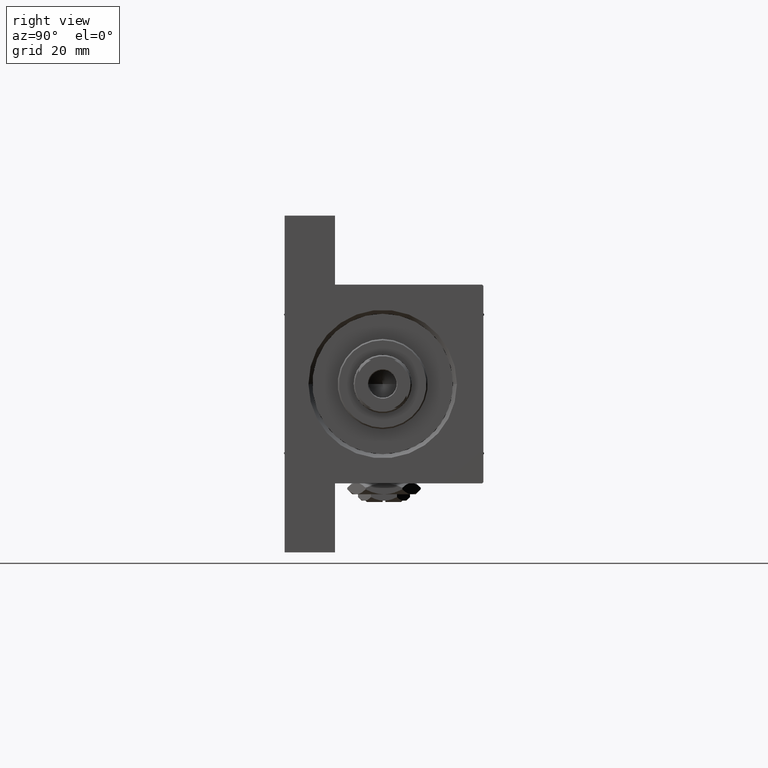
[diagram: clean part render]
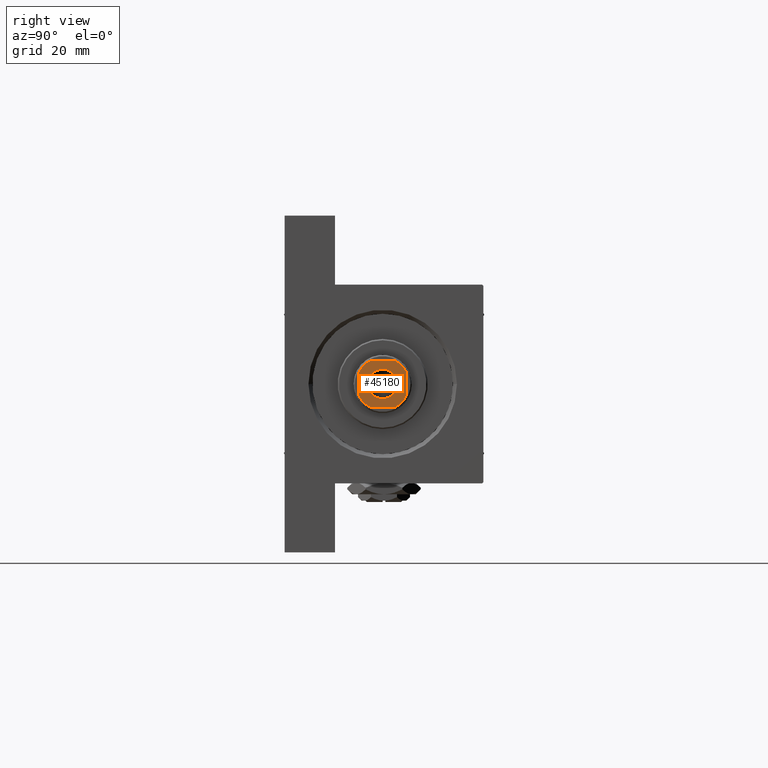
[diagram: same view with one face highlighted and labeled with its STEP entity id]
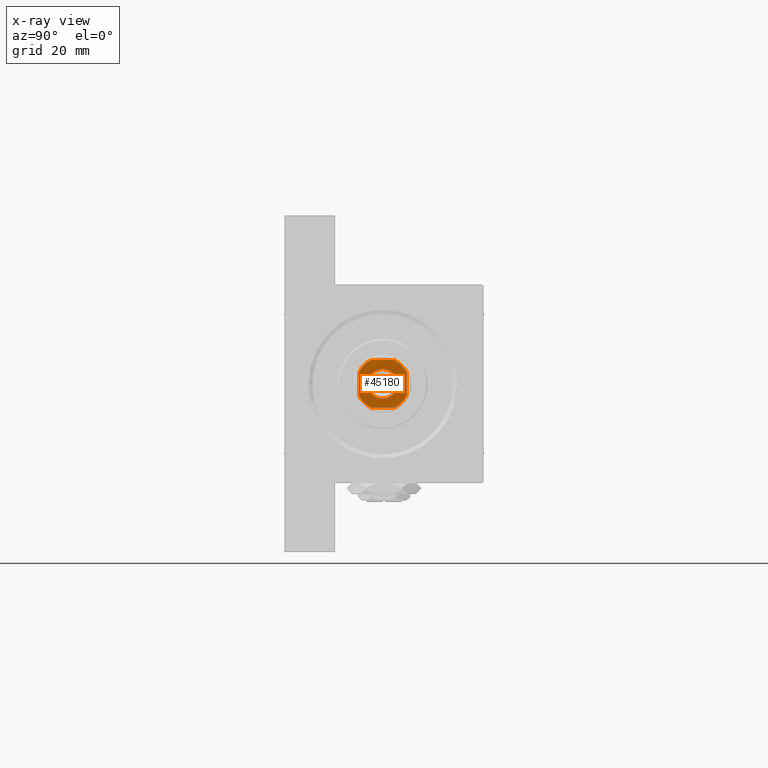
[diagram: x-ray of the same camera — body ghosted, the highlighted face saturated]
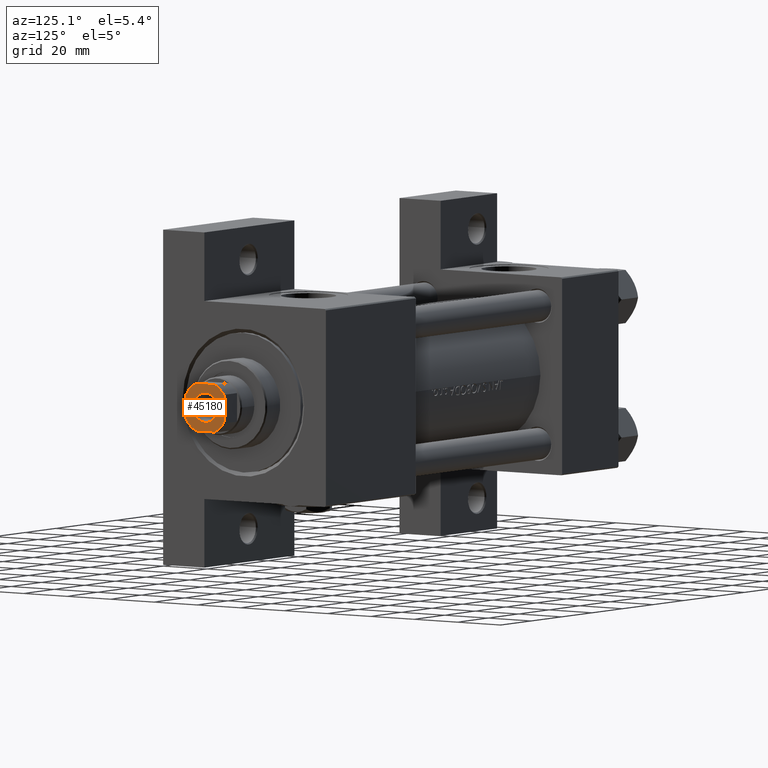
[diagram: same view with one face highlighted and labeled with its STEP entity id]
A machine part, right view. The second image highlights one B-rep face of the part: STEP entity #45180.
The next image is the same camera in x-ray: the body ghosted, the highlighted face saturated — about 0% of this face is hidden behind the body in this view.
A second angle (auxiliary view) of the same face is appended — the face is thin or edge-on in the first view.
In plain terms, the highlighted planar face has unit normal (1, 0, 0).
Its self-contained STEP definition (entity closure, byte-faithful):
#628 = LINE ( 'NONE', #46915, #21971 ) ;
#3373 = DIRECTION ( 'NONE',  ( 1.000000000000000000, 0.000000000000000000, 0.000000000000000000 ) ) ;
#3628 = ORIENTED_EDGE ( 'NONE', *, *, #28010, .T. ) ;
#3956 = DIRECTION ( 'NONE',  ( 1.000000000000000000, 0.000000000000000000, 0.000000000000000000 ) ) ;
#4175 = CARTESIAN_POINT ( 'NONE',  ( 8.999999999999998224, 4.358898943540576276, 180.0000000000000284 ) ) ;
#4261 = CARTESIAN_POINT ( 'NONE',  ( 0.000000000000000000, 0.000000000000000000, 180.0000000000000284 ) ) ;
#5315 = DIRECTION ( 'NONE',  ( -0.000000000000000000, 0.000000000000000000, 1.000000000000000000 ) ) ;
#5791 = LINE ( 'NONE', #44160, #15114 ) ;
#6799 = ORIENTED_EDGE ( 'NONE', *, *, #23567, .T. ) ;
#7145 = AXIS2_PLACEMENT_3D ( 'NONE', #34046, #49225, #30302 ) ;
#7213 = CARTESIAN_POINT ( 'NONE',  ( -4.358898943540708615, 8.999999999999998224, 180.0000000000000284 ) ) ;
#8848 = CARTESIAN_POINT ( 'NONE',  ( -9.000000000000003553, 4.358898943540702398, 180.0000000000000284 ) ) ;
#9667 = EDGE_CURVE ( 'NONE', #20607, #20601, #16808, .T. ) ;
#10963 = LINE ( 'NONE', #33892, #14077 ) ;
#11675 = DIRECTION ( 'NONE',  ( 1.000000000000000000, 0.000000000000000000, 0.000000000000000000 ) ) ;
#11969 = DIRECTION ( 'NONE',  ( -0.000000000000000000, 0.000000000000000000, 1.000000000000000000 ) ) ;
#12607 = CARTESIAN_POINT ( 'NONE',  ( -4.358898943540771675, -9.000000000000001776, 180.0000000000000284 ) ) ;
#12699 = CARTESIAN_POINT ( 'NONE',  ( 4.358898943540573612, 8.999999999999998224, 180.0000000000000284 ) ) ;
#13550 = DIRECTION ( 'NONE',  ( 1.000000000000000000, 0.000000000000000000, 0.000000000000000000 ) ) ;
#13814 = ORIENTED_EDGE ( 'NONE', *, *, #36752, .T. ) ;
#13940 = VERTEX_POINT ( 'NONE', #42362 ) ;
#13945 = AXIS2_PLACEMENT_3D ( 'NONE', #40703, #26419, #13550 ) ;
#14077 = VECTOR ( 'NONE', #18190, 1000.000000000000000 ) ;
#14287 = CARTESIAN_POINT ( 'NONE',  ( 0.000000000000000000, 0.000000000000000000, 180.0000000000000284 ) ) ;
#15114 = VECTOR ( 'NONE', #20997, 1000.000000000000000 ) ;
#16517 = CARTESIAN_POINT ( 'NONE',  ( 0.000000000000000000, 0.000000000000000000, 180.0000000000000284 ) ) ;
#16808 = CIRCLE ( 'NONE', #19207, 5.549999999999998934 ) ;
#18073 = VERTEX_POINT ( 'NONE', #4175 ) ;
#18190 = DIRECTION ( 'NONE',  ( 9.637352644315595243E-17, -1.000000000000000000, 0.000000000000000000 ) ) ;
#18904 = CARTESIAN_POINT ( 'NONE',  ( 0.000000000000000000, 0.000000000000000000, 180.0000000000000284 ) ) ;
#19207 = AXIS2_PLACEMENT_3D ( 'NONE', #18904, #26149, #11675 ) ;
#19252 = VERTEX_POINT ( 'NONE', #19759 ) ;
#19759 = CARTESIAN_POINT ( 'NONE',  ( 4.358898943540703286, -9.000000000000001776, 180.0000000000000284 ) ) ;
#20499 = VERTEX_POINT ( 'NONE', #7213 ) ;
#20601 = VERTEX_POINT ( 'NONE', #46303 ) ;
#20607 = VERTEX_POINT ( 'NONE', #43059 ) ;
#20652 = EDGE_LOOP ( 'NONE', ( #3628, #6799, #32621, #32241, #32994, #26535, #41585, #13814 ) ) ;
#20997 = DIRECTION ( 'NONE',  ( -1.000000000000000000, -0.000000000000000000, -0.000000000000000000 ) ) ;
#21971 = VECTOR ( 'NONE', #27751, 1000.000000000000000 ) ;
#23567 = EDGE_CURVE ( 'NONE', #18073, #48497, #30660, .T. ) ;
#26149 = DIRECTION ( 'NONE',  ( 0.000000000000000000, -0.000000000000000000, -1.000000000000000000 ) ) ;
#26297 = AXIS2_PLACEMENT_3D ( 'NONE', #14287, #41436, #36727 ) ;
#26419 = DIRECTION ( 'NONE',  ( -0.000000000000000000, 0.000000000000000000, 1.000000000000000000 ) ) ;
#26535 = ORIENTED_EDGE ( 'NONE', *, *, #38978, .T. ) ;
#27159 = VERTEX_POINT ( 'NONE', #8848 ) ;
#27751 = DIRECTION ( 'NONE',  ( -1.927470528863119049E-16, 1.000000000000000000, -0.000000000000000000 ) ) ;
#28010 = EDGE_CURVE ( 'NONE', #13940, #18073, #628, .T. ) ;
#29133 = ORIENTED_EDGE ( 'NONE', *, *, #9667, .T. ) ;
#29284 = CIRCLE ( 'NONE', #34053, 10.00000000000001421 ) ;
#30167 = AXIS2_PLACEMENT_3D ( 'NONE', #4261, #11969, #31640 ) ;
#30302 = DIRECTION ( 'NONE',  ( 1.000000000000000000, 0.000000000000000000, 0.000000000000000000 ) ) ;
#30448 = EDGE_CURVE ( 'NONE', #27159, #42038, #10963, .T. ) ;
#30549 = PLANE ( 'NONE',  #7145 ) ;
#30660 = CIRCLE ( 'NONE', #13945, 9.999999999999955591 ) ;
#30989 = AXIS2_PLACEMENT_3D ( 'NONE', #40496, #37012, #3373 ) ;
#31640 = DIRECTION ( 'NONE',  ( 1.000000000000000000, 0.000000000000000000, 0.000000000000000000 ) ) ;
#31721 = DIRECTION ( 'NONE',  ( 1.000000000000000000, 0.000000000000000000, 0.000000000000000000 ) ) ;
#32241 = ORIENTED_EDGE ( 'NONE', *, *, #41188, .T. ) ;
#32621 = ORIENTED_EDGE ( 'NONE', *, *, #45551, .T. ) ;
#32994 = ORIENTED_EDGE ( 'NONE', *, *, #30448, .T. ) ;
#33892 = CARTESIAN_POINT ( 'NONE',  ( -9.000000000000003553, 8.999999999999998224, 180.0000000000000284 ) ) ;
#34046 = CARTESIAN_POINT ( 'NONE',  ( 0.000000000000000000, 0.000000000000000000, 180.0000000000000284 ) ) ;
#34053 = AXIS2_PLACEMENT_3D ( 'NONE', #16517, #5315, #31721 ) ;
#34294 = FACE_OUTER_BOUND ( 'NONE', #20652, .T. ) ;
#35085 = CARTESIAN_POINT ( 'NONE',  ( -9.000000000000001776, -9.000000000000001776, 180.0000000000000284 ) ) ;
#36727 = DIRECTION ( 'NONE',  ( 1.000000000000000000, 0.000000000000000000, 0.000000000000000000 ) ) ;
#36752 = EDGE_CURVE ( 'NONE', #19252, #13940, #29284, .T. ) ;
#37012 = DIRECTION ( 'NONE',  ( -0.000000000000000000, 0.000000000000000000, 1.000000000000000000 ) ) ;
#38338 = LINE ( 'NONE', #35085, #46058 ) ;
#38978 = EDGE_CURVE ( 'NONE', #42038, #42691, #40488, .T. ) ;
#39213 = EDGE_CURVE ( 'NONE', #42691, #19252, #38338, .T. ) ;
#40488 = CIRCLE ( 'NONE', #30167, 10.00000000000004441 ) ;
#40496 = CARTESIAN_POINT ( 'NONE',  ( 0.000000000000000000, 0.000000000000000000, 180.0000000000000284 ) ) ;
#40703 = CARTESIAN_POINT ( 'NONE',  ( 0.000000000000000000, 0.000000000000000000, 180.0000000000000284 ) ) ;
#41028 = EDGE_LOOP ( 'NONE', ( #29133, #43216 ) ) ;
#41188 = EDGE_CURVE ( 'NONE', #20499, #27159, #46094, .T. ) ;
#41415 = CIRCLE ( 'NONE', #26297, 5.549999999999998934 ) ;
#41436 = DIRECTION ( 'NONE',  ( 0.000000000000000000, -0.000000000000000000, -1.000000000000000000 ) ) ;
#41585 = ORIENTED_EDGE ( 'NONE', *, *, #39213, .T. ) ;
#42038 = VERTEX_POINT ( 'NONE', #46250 ) ;
#42265 = FACE_BOUND ( 'NONE', #41028, .T. ) ;
#42362 = CARTESIAN_POINT ( 'NONE',  ( 8.999999999999998224, -4.358898943540707727, 180.0000000000000284 ) ) ;
#42691 = VERTEX_POINT ( 'NONE', #12607 ) ;
#43059 = CARTESIAN_POINT ( 'NONE',  ( 5.549999999999998934, 0.000000000000000000, 180.0000000000000284 ) ) ;
#43137 = EDGE_CURVE ( 'NONE', #20601, #20607, #41415, .T. ) ;
#43216 = ORIENTED_EDGE ( 'NONE', *, *, #43137, .T. ) ;
#44160 = CARTESIAN_POINT ( 'NONE',  ( -9.000000000000003553, 8.999999999999998224, 180.0000000000000284 ) ) ;
#45180 = ADVANCED_FACE ( 'NONE', ( #42265, #34294 ), #30549, .T. ) ;
#45551 = EDGE_CURVE ( 'NONE', #48497, #20499, #5791, .T. ) ;
#46058 = VECTOR ( 'NONE', #3956, 1000.000000000000000 ) ;
#46094 = CIRCLE ( 'NONE', #30989, 10.00000000000001421 ) ;
#46250 = CARTESIAN_POINT ( 'NONE',  ( -9.000000000000003553, -4.358898943540769899, 180.0000000000000284 ) ) ;
#46303 = CARTESIAN_POINT ( 'NONE',  ( -5.549999999999998934, 6.796789735267809794E-16, 180.0000000000000284 ) ) ;
#46915 = CARTESIAN_POINT ( 'NONE',  ( 8.999999999999996447, 8.999999999999998224, 180.0000000000000284 ) ) ;
#48497 = VERTEX_POINT ( 'NONE', #12699 ) ;
#49225 = DIRECTION ( 'NONE',  ( -0.000000000000000000, 0.000000000000000000, 1.000000000000000000 ) ) ;